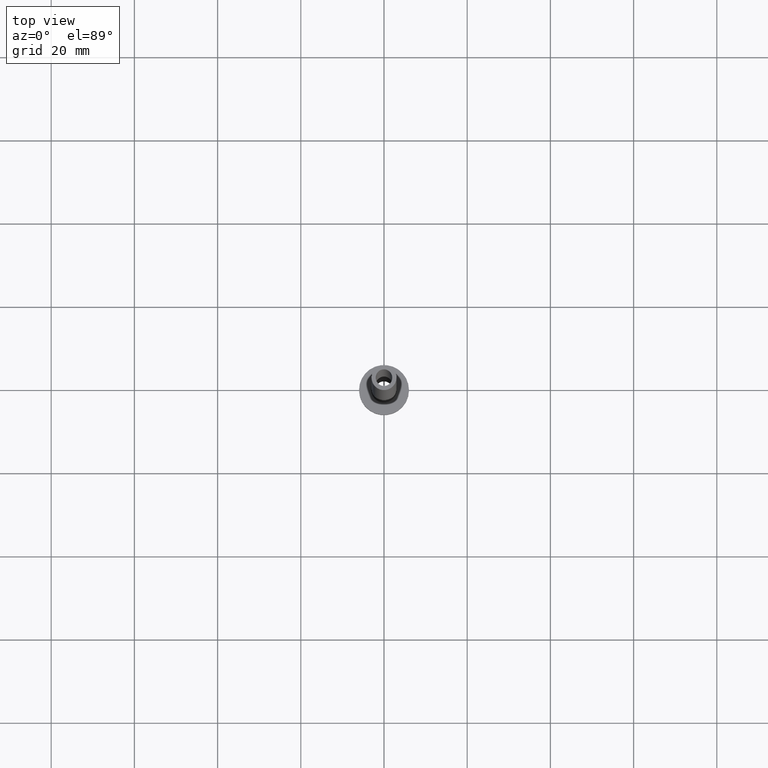
[diagram: clean part render]
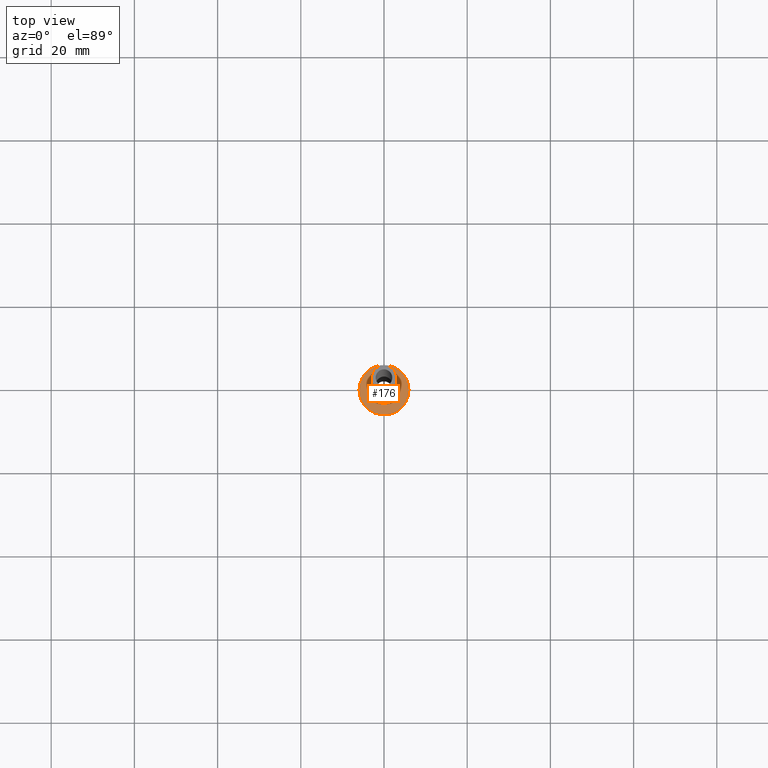
[diagram: same view with one face highlighted and labeled with its STEP entity id]
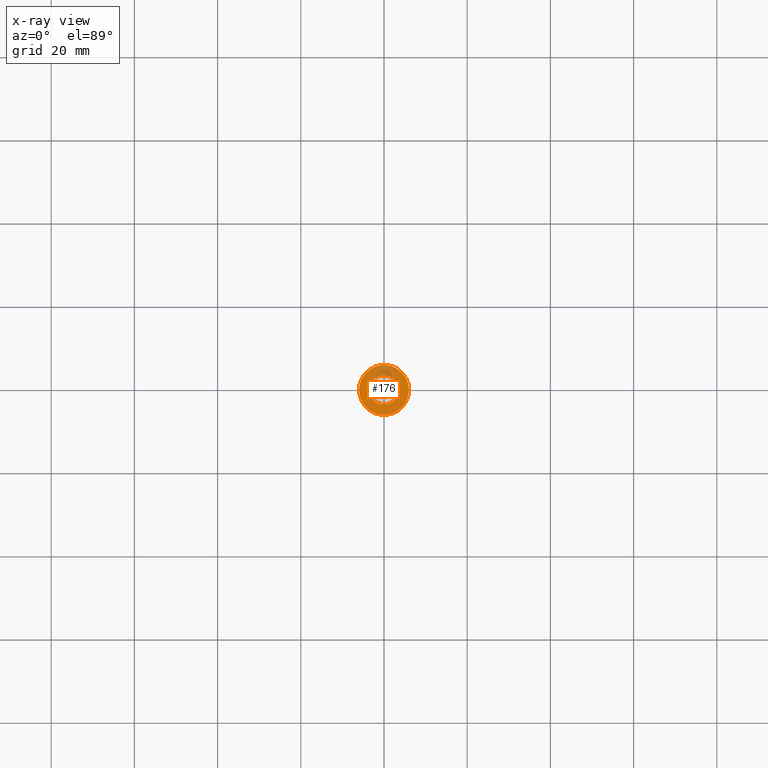
[diagram: x-ray of the same camera — body ghosted, the highlighted face saturated]
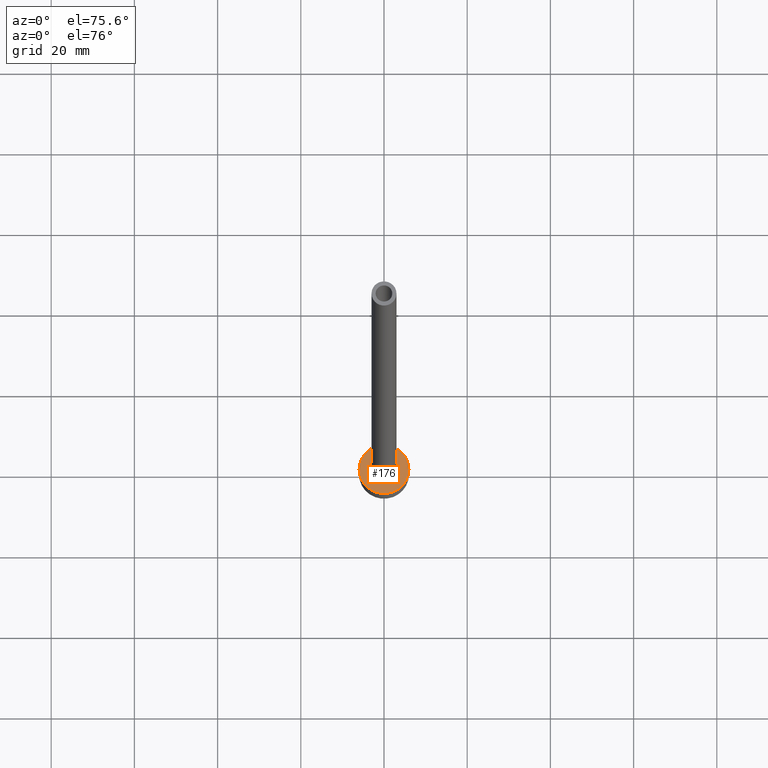
[diagram: same view with one face highlighted and labeled with its STEP entity id]
A machine part, top view. The second image highlights one B-rep face of the part: STEP entity #176.
The next image is the same camera in x-ray: the body ghosted, the highlighted face saturated — about 19% of this face is hidden behind the body in this view.
A second angle (auxiliary view) of the same face is appended — the face is thin or edge-on in the first view.
In plain terms, the highlighted planar face has unit normal (0, 0, 1).
Its self-contained STEP definition (entity closure, byte-faithful):
#6 = DIRECTION ( 'NONE',  ( 1.000000000000000000, 0.000000000000000000, 0.000000000000000000 ) ) ;
#7 = AXIS2_PLACEMENT_3D ( 'NONE', #293, #117, #431 ) ;
#32 = DIRECTION ( 'NONE',  ( 1.000000000000000000, 0.000000000000000000, 0.000000000000000000 ) ) ;
#36 = EDGE_CURVE ( 'NONE', #231, #403, #382, .T. ) ;
#37 = CARTESIAN_POINT ( 'NONE',  ( -3.500000000000000444, 4.286263797015737088E-16, 5.000000000000002665 ) ) ;
#39 = AXIS2_PLACEMENT_3D ( 'NONE', #253, #114, #6 ) ;
#48 = PLANE ( 'NONE',  #7 ) ;
#53 = AXIS2_PLACEMENT_3D ( 'NONE', #190, #439, #436 ) ;
#70 = EDGE_CURVE ( 'NONE', #403, #231, #234, .T. ) ;
#73 = CARTESIAN_POINT ( 'NONE',  ( 6.000000000000000888, 7.347880794884120722E-16, 5.000000000000000000 ) ) ;
#88 = CARTESIAN_POINT ( 'NONE',  ( -6.000000000000000888, 0.000000000000000000, 5.000000000000000000 ) ) ;
#96 = AXIS2_PLACEMENT_3D ( 'NONE', #329, #414, #261 ) ;
#97 = ORIENTED_EDGE ( 'NONE', *, *, #348, .T. ) ;
#98 = CARTESIAN_POINT ( 'NONE',  ( 3.500000000000000444, 0.000000000000000000, 5.000000000000002665 ) ) ;
#110 = EDGE_CURVE ( 'NONE', #272, #442, #189, .T. ) ;
#114 = DIRECTION ( 'NONE',  ( 0.000000000000000000, 0.000000000000000000, 1.000000000000000000 ) ) ;
#117 = DIRECTION ( 'NONE',  ( 0.000000000000000000, 0.000000000000000000, 1.000000000000000000 ) ) ;
#121 = EDGE_LOOP ( 'NONE', ( #367, #405 ) ) ;
#176 = ADVANCED_FACE ( 'NONE', ( #404, #361 ), #48, .T. ) ;
#180 = AXIS2_PLACEMENT_3D ( 'NONE', #236, #201, #32 ) ;
#189 = CIRCLE ( 'NONE', #53, 3.500000000000000444 ) ;
#190 = CARTESIAN_POINT ( 'NONE',  ( 0.000000000000000000, 0.000000000000000000, 5.000000000000000000 ) ) ;
#201 = DIRECTION ( 'NONE',  ( 0.000000000000000000, 0.000000000000000000, 1.000000000000000000 ) ) ;
#231 = VERTEX_POINT ( 'NONE', #88 ) ;
#234 = CIRCLE ( 'NONE', #39, 6.000000000000000888 ) ;
#236 = CARTESIAN_POINT ( 'NONE',  ( 0.000000000000000000, 0.000000000000000000, 5.000000000000000000 ) ) ;
#253 = CARTESIAN_POINT ( 'NONE',  ( 0.000000000000000000, 0.000000000000000000, 5.000000000000000000 ) ) ;
#261 = DIRECTION ( 'NONE',  ( 1.000000000000000000, 0.000000000000000000, 0.000000000000000000 ) ) ;
#272 = VERTEX_POINT ( 'NONE', #98 ) ;
#293 = CARTESIAN_POINT ( 'NONE',  ( 0.000000000000000000, 0.000000000000000000, 5.000000000000000000 ) ) ;
#329 = CARTESIAN_POINT ( 'NONE',  ( 0.000000000000000000, 0.000000000000000000, 5.000000000000000000 ) ) ;
#331 = CIRCLE ( 'NONE', #96, 3.500000000000000444 ) ;
#338 = ORIENTED_EDGE ( 'NONE', *, *, #110, .T. ) ;
#348 = EDGE_CURVE ( 'NONE', #442, #272, #331, .T. ) ;
#361 = FACE_OUTER_BOUND ( 'NONE', #121, .T. ) ;
#367 = ORIENTED_EDGE ( 'NONE', *, *, #36, .T. ) ;
#382 = CIRCLE ( 'NONE', #180, 6.000000000000000888 ) ;
#403 = VERTEX_POINT ( 'NONE', #73 ) ;
#404 = FACE_BOUND ( 'NONE', #410, .T. ) ;
#405 = ORIENTED_EDGE ( 'NONE', *, *, #70, .T. ) ;
#410 = EDGE_LOOP ( 'NONE', ( #338, #97 ) ) ;
#414 = DIRECTION ( 'NONE',  ( -0.000000000000000000, -0.000000000000000000, -1.000000000000000000 ) ) ;
#431 = DIRECTION ( 'NONE',  ( 1.000000000000000000, 0.000000000000000000, -0.000000000000000000 ) ) ;
#436 = DIRECTION ( 'NONE',  ( 1.000000000000000000, 0.000000000000000000, 0.000000000000000000 ) ) ;
#439 = DIRECTION ( 'NONE',  ( -0.000000000000000000, -0.000000000000000000, -1.000000000000000000 ) ) ;
#442 = VERTEX_POINT ( 'NONE', #37 ) ;